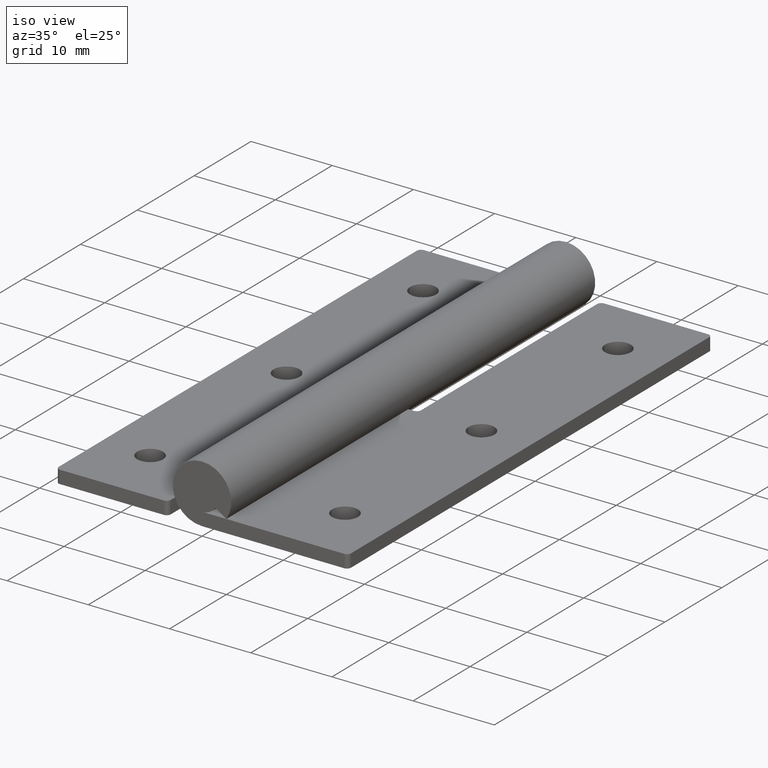
[diagram: clean part render]
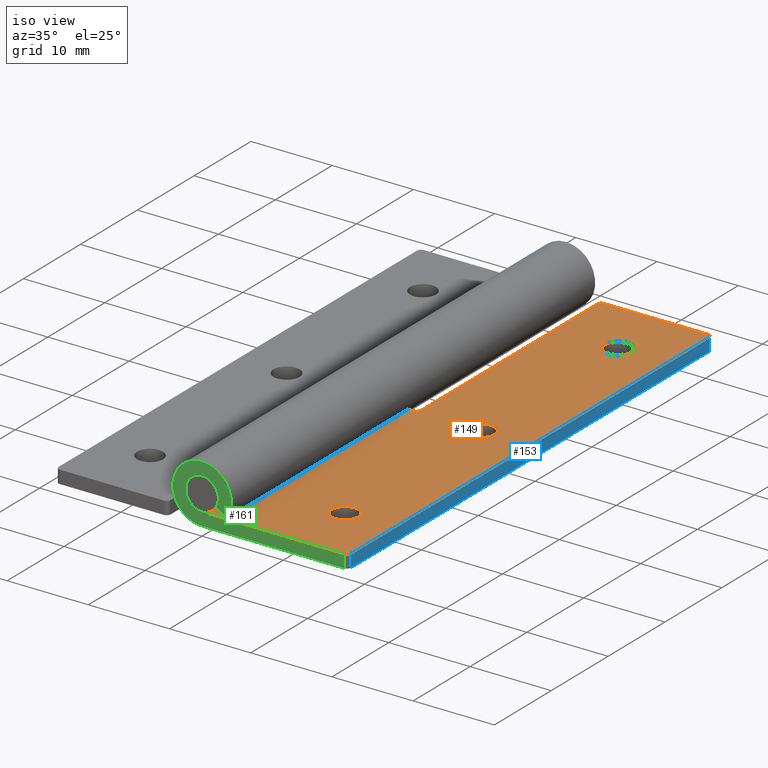
[diagram: same view with three faces highlighted in distinct colors, each labeled with its STEP entity id]
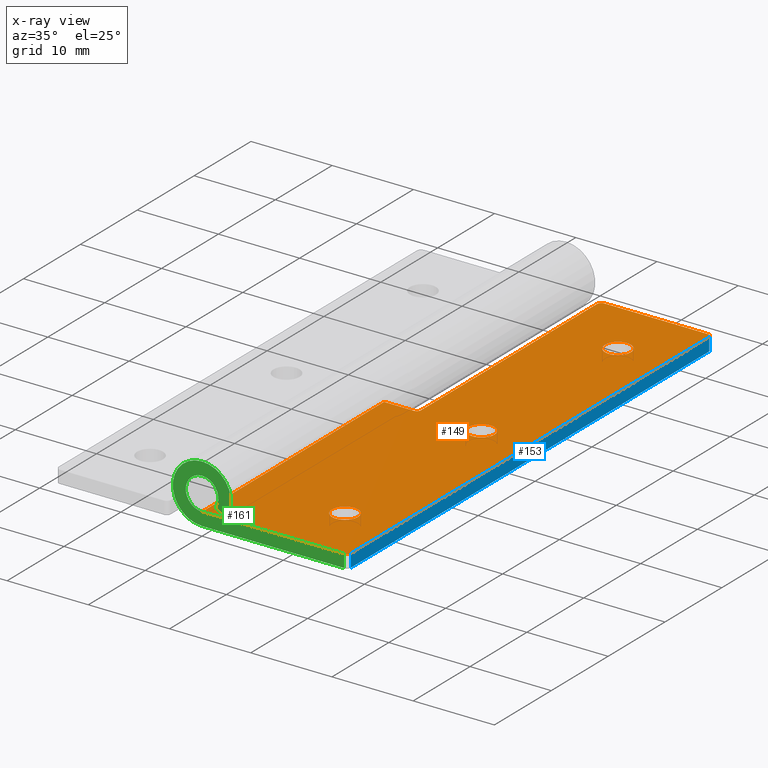
[diagram: x-ray of the same camera — body ghosted, the three highlighted faces saturated]
A machine part, iso view with three faces highlighted in distinct colors.
The next image is the same camera in x-ray (body ghosted, the three faces saturated) — at least one of them is partly hidden behind the body in this view.
Their STEP definitions:

[orange] entity #149 — the highlighted planar face has unit normal (0, 0, 1).
#149=ADVANCED_FACE('',(#196,#197,#198,#199),#195,.T.);
#195=PLANE('',#670);
#196=FACE_OUTER_BOUND('',#671,.T.);
#197=FACE_BOUND('',#672,.T.);
#198=FACE_BOUND('',#673,.T.);
#199=FACE_BOUND('',#674,.T.);
#667=CARTESIAN_POINT('',(-1.80000000000E+00,-6.40000000000E+00,-2.00000000000E+00));
#668=DIRECTION('',(0.00000000000E+00,-0.00000000000E+00,1.00000000000E+00));
#669=DIRECTION('',(1.00000000000E+00,0.00000000000E+00,-0.00000000000E+00));
#670=AXIS2_PLACEMENT_3D('',#667,#668,#669);
#671=EDGE_LOOP('',(#921,#922,#923,#924,#925,#926,#927,#928,#929,#930));
#672=EDGE_LOOP('',(#931,#932));
#673=EDGE_LOOP('',(#933,#934));
#674=EDGE_LOOP('',(#935,#936));
#921=ORIENTED_EDGE('',*,*,#1157,.F.);
#922=ORIENTED_EDGE('',*,*,#1158,.T.);
#923=ORIENTED_EDGE('',*,*,#1159,.F.);
#924=ORIENTED_EDGE('',*,*,#1160,.T.);
#925=ORIENTED_EDGE('',*,*,#1161,.T.);
#926=ORIENTED_EDGE('',*,*,#1162,.T.);
#927=ORIENTED_EDGE('',*,*,#1163,.F.);
#928=ORIENTED_EDGE('',*,*,#1164,.F.);
#929=ORIENTED_EDGE('',*,*,#1165,.F.);
#930=ORIENTED_EDGE('',*,*,#1166,.T.);
#931=ORIENTED_EDGE('',*,*,#1167,.F.);
#932=ORIENTED_EDGE('',*,*,#1168,.F.);
#933=ORIENTED_EDGE('',*,*,#1169,.F.);
#934=ORIENTED_EDGE('',*,*,#1170,.F.);
#935=ORIENTED_EDGE('',*,*,#1171,.F.);
#936=ORIENTED_EDGE('',*,*,#1172,.F.);
#1157=EDGE_CURVE('',#1275,#1276,#1277,.T.);
#1158=EDGE_CURVE('',#1275,#1283,#1284,.T.);
#1159=EDGE_CURVE('',#1290,#1283,#1291,.T.);
#1160=EDGE_CURVE('',#1290,#1297,#1298,.T.);
#1161=EDGE_CURVE('',#1297,#1304,#1305,.T.);
#1162=EDGE_CURVE('',#1304,#1311,#1312,.T.);
#1163=EDGE_CURVE('',#1318,#1311,#1319,.T.);
#1164=EDGE_CURVE('',#1325,#1318,#1326,.T.);
#1165=EDGE_CURVE('',#1332,#1325,#1333,.T.);
#1166=EDGE_CURVE('',#1332,#1276,#1339,.T.);
#1167=EDGE_CURVE('',#1345,#1346,#1347,.T.);
#1168=EDGE_CURVE('',#1346,#1345,#1353,.T.);
#1169=EDGE_CURVE('',#1359,#1360,#1361,.T.);
#1170=EDGE_CURVE('',#1360,#1359,#1367,.T.);
#1171=EDGE_CURVE('',#1373,#1374,#1375,.T.);
#1172=EDGE_CURVE('',#1374,#1373,#1381,.T.);
#1275=VERTEX_POINT('',#2061);
#1276=VERTEX_POINT('',#2062);
#1277=LINE('',#2063,#2064);
#1283=VERTEX_POINT('',#2066);
#1284=CIRCLE('',#2070,5.00000000000E-01);
#1290=VERTEX_POINT('',#2071);
#1291=LINE('',#2072,#2073);
#1297=VERTEX_POINT('',#2075);
#1298=CIRCLE('',#2079,5.00000000000E-01);
#1304=VERTEX_POINT('',#2080);
#1305=LINE('',#2081,#2082);
#1311=VERTEX_POINT('',#2084);
#1312=CIRCLE('',#2088,5.00000000000E-01);
#1318=VERTEX_POINT('',#2089);
#1319=LINE('',#2090,#2091);
#1325=VERTEX_POINT('',#2093);
#1326=CIRCLE('',#2097,5.00000000000E-01);
#1332=VERTEX_POINT('',#2098);
#1333=LINE('',#2099,#2100);
#1339=LINE('',#2102,#2103);
#1345=VERTEX_POINT('',#2105);
#1346=VERTEX_POINT('',#2106);
#1347=CIRCLE('',#2110,1.60000000000E+00);
#1353=CIRCLE('',#2114,1.60000000000E+00);
#1359=VERTEX_POINT('',#2115);
#1360=VERTEX_POINT('',#2116);
#1361=CIRCLE('',#2120,1.60000000000E+00);
#1367=CIRCLE('',#2124,1.60000000000E+00);
#1373=VERTEX_POINT('',#2125);
#1374=VERTEX_POINT('',#2126);
#1375=CIRCLE('',#2130,1.60000000000E+00);
#1381=CIRCLE('',#2134,1.60000000000E+00);
#2061=CARTESIAN_POINT('',(1.75000000000E+01,0.00000000000E+00,-2.00000000000E+00));
#2062=CARTESIAN_POINT('',(0.00000000000E+00,0.00000000000E+00,-2.00000000000E+00));
#2063=CARTESIAN_POINT('',(1.75000000000E+01,0.00000000000E+00,-2.00000000000E+00));
#2064=VECTOR('',#2065,1.75000000000E+01);
#2065=DIRECTION('',(-1.00000000000E+00,0.00000000000E+00,0.00000000000E+00));
#2066=CARTESIAN_POINT('',(1.80000000000E+01,5.00000000000E-01,-2.00000000000E+00));
#2067=CARTESIAN_POINT('',(1.75000000000E+01,5.00000000000E-01,-2.00000000000E+00));
#2068=DIRECTION('',(0.00000000000E+00,0.00000000000E+00,1.00000000000E+00));
#2069=DIRECTION('',(-1.00000000000E+00,-0.00000000000E+00,0.00000000000E+00));
#2070=AXIS2_PLACEMENT_3D('',#2067,#2068,#2069);
#2071=CARTESIAN_POINT('',(1.80000000000E+01,6.35000000000E+01,-2.00000000000E+00));
#2072=CARTESIAN_POINT('',(1.80000000000E+01,6.35000000000E+01,-2.00000000000E+00));
#2073=VECTOR('',#2074,6.30000000000E+01);
#2074=DIRECTION('',(0.00000000000E+00,-1.00000000000E+00,0.00000000000E+00));
#2075=CARTESIAN_POINT('',(1.75000000000E+01,6.40000000000E+01,-2.00000000000E+00));
#2076=CARTESIAN_POINT('',(1.75000000000E+01,6.35000000000E+01,-2.00000000000E+00));
#2077=DIRECTION('',(0.00000000000E+00,0.00000000000E+00,1.00000000000E+00));
#2078=DIRECTION('',(-1.00000000000E+00,-0.00000000000E+00,0.00000000000E+00));
#2079=AXIS2_PLACEMENT_3D('',#2076,#2077,#2078);
#2080=CARTESIAN_POINT('',(4.70000000004E+00,6.40000000000E+01,-2.00000000000E+00));
#2081=CARTESIAN_POINT('',(1.75000000000E+01,6.40000000000E+01,-2.00000000000E+00));
#2082=VECTOR('',#2083,1.28000000000E+01);
#2083=DIRECTION('',(-1.00000000000E+00,0.00000000000E+00,0.00000000000E+00));
#2084=CARTESIAN_POINT('',(4.20000000004E+00,6.35000000000E+01,-2.00000000000E+00));
#2085=CARTESIAN_POINT('',(4.70000000004E+00,6.35000000000E+01,-2.00000000000E+00));
#2086=DIRECTION('',(0.00000000000E+00,0.00000000000E+00,1.00000000000E+00));
#2087=DIRECTION('',(-1.00000000000E+00,-0.00000000000E+00,0.00000000000E+00));
#2088=AXIS2_PLACEMENT_3D('',#2085,#2086,#2087);
#2089=CARTESIAN_POINT('',(4.20000000004E+00,3.25000000000E+01,-2.00000000000E+00));
#2090=CARTESIAN_POINT('',(4.20000000004E+00,3.25000000000E+01,-2.00000000000E+00));
#2091=VECTOR('',#2092,3.10000000000E+01);
#2092=DIRECTION('',(0.00000000000E+00,1.00000000000E+00,0.00000000000E+00));
#2093=CARTESIAN_POINT('',(3.70000000004E+00,3.20000000000E+01,-2.00000000000E+00));
#2094=CARTESIAN_POINT('',(3.70000000004E+00,3.25000000000E+01,-2.00000000000E+00));
#2095=DIRECTION('',(0.00000000000E+00,0.00000000000E+00,1.00000000000E+00));
#2096=DIRECTION('',(-1.00000000000E+00,-0.00000000000E+00,0.00000000000E+00));
#2097=AXIS2_PLACEMENT_3D('',#2094,#2095,#2096);
#2098=CARTESIAN_POINT('',(0.00000000000E+00,3.20000000000E+01,-2.00000000000E+00));
#2099=CARTESIAN_POINT('',(0.00000000000E+00,3.20000000000E+01,-2.00000000000E+00));
#2100=VECTOR('',#2101,3.70000000004E+00);
#2101=DIRECTION('',(1.00000000000E+00,0.00000000000E+00,0.00000000000E+00));
#2102=CARTESIAN_POINT('',(0.00000000000E+00,3.20000000000E+01,-2.00000000000E+00));
#2103=VECTOR('',#2104,3.20000000000E+01);
#2104=DIRECTION('',(0.00000000000E+00,-1.00000000000E+00,0.00000000000E+00));
#2105=CARTESIAN_POINT('',(1.04000000000E+01,3.20000000000E+01,-2.00000000000E+00));
#2106=CARTESIAN_POINT('',(1.36000000000E+01,3.20000000000E+01,-2.00000000000E+00));
#2107=CARTESIAN_POINT('',(1.20000000000E+01,3.20000000000E+01,-2.00000000000E+00));
#2108=DIRECTION('',(0.00000000000E+00,-0.00000000000E+00,1.00000000000E+00));
#2109=DIRECTION('',(1.00000000000E+00,-1.22460635382E-16,-0.00000000000E+00));
#2110=AXIS2_PLACEMENT_3D('',#2107,#2108,#2109);
#2111=CARTESIAN_POINT('',(1.20000000000E+01,3.20000000000E+01,-2.00000000000E+00));
#2112=DIRECTION('',(0.00000000000E+00,-0.00000000000E+00,1.00000000000E+00));
#2113=DIRECTION('',(1.00000000000E+00,-1.22460635382E-16,-0.00000000000E+00));
#2114=AXIS2_PLACEMENT_3D('',#2111,#2112,#2113);
#2115=CARTESIAN_POINT('',(1.04000000000E+01,8.00000000000E+00,-2.00000000000E+00));
#2116=CARTESIAN_POINT('',(1.36000000000E+01,8.00000000000E+00,-2.00000000000E+00));
#2117=CARTESIAN_POINT('',(1.20000000000E+01,8.00000000000E+00,-2.00000000000E+00));
#2118=DIRECTION('',(0.00000000000E+00,-0.00000000000E+00,1.00000000000E+00));
#2119=DIRECTION('',(1.00000000000E+00,-1.22460635382E-16,-0.00000000000E+00));
#2120=AXIS2_PLACEMENT_3D('',#2117,#2118,#2119);
#2121=CARTESIAN_POINT('',(1.20000000000E+01,8.00000000000E+00,-2.00000000000E+00));
#2122=DIRECTION('',(0.00000000000E+00,-0.00000000000E+00,1.00000000000E+00));
#2123=DIRECTION('',(1.00000000000E+00,-1.22460635382E-16,-0.00000000000E+00));
#2124=AXIS2_PLACEMENT_3D('',#2121,#2122,#2123);
#2125=CARTESIAN_POINT('',(1.04000000000E+01,5.60000000000E+01,-2.00000000000E+00));
#2126=CARTESIAN_POINT('',(1.36000000000E+01,5.60000000000E+01,-2.00000000000E+00));
#2127=CARTESIAN_POINT('',(1.20000000000E+01,5.60000000000E+01,-2.00000000000E+00));
#2128=DIRECTION('',(0.00000000000E+00,-0.00000000000E+00,1.00000000000E+00));
#2129=DIRECTION('',(1.00000000000E+00,-1.22460635382E-16,-0.00000000000E+00));
#2130=AXIS2_PLACEMENT_3D('',#2127,#2128,#2129);
#2131=CARTESIAN_POINT('',(1.20000000000E+01,5.60000000000E+01,-2.00000000000E+00));
#2132=DIRECTION('',(0.00000000000E+00,-0.00000000000E+00,1.00000000000E+00));
#2133=DIRECTION('',(1.00000000000E+00,-1.22460635382E-16,-0.00000000000E+00));
#2134=AXIS2_PLACEMENT_3D('',#2131,#2132,#2133);

[blue] entity #153 — the highlighted planar face has unit normal (1, 0, 0).
#153=ADVANCED_FACE('',(#242),#241,.T.);
#241=PLANE('',#696);
#242=FACE_OUTER_BOUND('',#697,.T.);
#693=CARTESIAN_POINT('',(1.80000000000E+01,-5.80000000000E+00,-1.84000000000E+00));
#694=DIRECTION('',(1.00000000000E+00,0.00000000000E+00,0.00000000000E+00));
#695=DIRECTION('',(0.00000000000E+00,0.00000000000E+00,-1.00000000000E+00));
#696=AXIS2_PLACEMENT_3D('',#693,#694,#695);
#697=EDGE_LOOP('',(#961,#962,#963,#964));
#961=ORIENTED_EDGE('',*,*,#1193,.F.);
#962=ORIENTED_EDGE('',*,*,#1179,.F.);
#963=ORIENTED_EDGE('',*,*,#1173,.T.);
#964=ORIENTED_EDGE('',*,*,#1159,.T.);
#1159=EDGE_CURVE('',#1290,#1283,#1291,.T.);
#1173=EDGE_CURVE('',#1387,#1290,#1388,.T.);
#1179=EDGE_CURVE('',#1387,#1427,#1428,.T.);
#1193=EDGE_CURVE('',#1427,#1283,#1523,.T.);
#1283=VERTEX_POINT('',#2066);
#1290=VERTEX_POINT('',#2071);
#1291=LINE('',#2072,#2073);
#1387=VERTEX_POINT('',#2135);
#1388=LINE('',#2136,#2137);
#1427=VERTEX_POINT('',#2159);
#1428=LINE('',#2160,#2161);
#1523=LINE('',#2221,#2222);
#2066=CARTESIAN_POINT('',(1.80000000000E+01,5.00000000000E-01,-2.00000000000E+00));
#2071=CARTESIAN_POINT('',(1.80000000000E+01,6.35000000000E+01,-2.00000000000E+00));
#2072=CARTESIAN_POINT('',(1.80000000000E+01,6.35000000000E+01,-2.00000000000E+00));
#2073=VECTOR('',#2074,6.30000000000E+01);
#2074=DIRECTION('',(0.00000000000E+00,-1.00000000000E+00,0.00000000000E+00));
#2135=CARTESIAN_POINT('',(1.80000000000E+01,6.35000000000E+01,-3.60000000000E+00));
#2136=CARTESIAN_POINT('',(1.80000000000E+01,6.35000000000E+01,-3.60000000000E+00));
#2137=VECTOR('',#2138,1.60000000000E+00);
#2138=DIRECTION('',(0.00000000000E+00,0.00000000000E+00,1.00000000000E+00));
#2159=CARTESIAN_POINT('',(1.80000000000E+01,5.00000000000E-01,-3.60000000000E+00));
#2160=CARTESIAN_POINT('',(1.80000000000E+01,6.35000000000E+01,-3.60000000000E+00));
#2161=VECTOR('',#2162,6.30000000000E+01);
#2162=DIRECTION('',(0.00000000000E+00,-1.00000000000E+00,0.00000000000E+00));
#2221=CARTESIAN_POINT('',(1.80000000000E+01,5.00000000000E-01,-3.60000000000E+00));
#2222=VECTOR('',#2223,1.60000000000E+00);
#2223=DIRECTION('',(0.00000000000E+00,0.00000000000E+00,1.00000000000E+00));

[green] entity #161 — the highlighted planar face has unit normal (0, 1, 0).
#161=ADVANCED_FACE('',(#322),#321,.F.);
#321=PLANE('',#736);
#322=FACE_OUTER_BOUND('',#737,.T.);
#733=CARTESIAN_POINT('',(-6.57238381983E+00,0.00000000000E+00,-4.46005002209E+00));
#734=DIRECTION('',(-0.00000000000E+00,1.00000000000E+00,0.00000000000E+00));
#735=DIRECTION('',(0.00000000000E+00,0.00000000000E+00,1.00000000000E+00));
#736=AXIS2_PLACEMENT_3D('',#733,#734,#735);
#737=EDGE_LOOP('',(#993,#994,#995,#996,#997,#998));
#993=ORIENTED_EDGE('',*,*,#1204,.T.);
#994=ORIENTED_EDGE('',*,*,#1157,.T.);
#995=ORIENTED_EDGE('',*,*,#1197,.F.);
#996=ORIENTED_EDGE('',*,*,#1200,.T.);
#997=ORIENTED_EDGE('',*,*,#1202,.T.);
#998=ORIENTED_EDGE('',*,*,#1181,.T.);
#1157=EDGE_CURVE('',#1275,#1276,#1277,.T.);
#1181=EDGE_CURVE('',#1441,#1434,#1442,.T.);
#1197=EDGE_CURVE('',#1542,#1276,#1549,.T.);
#1200=EDGE_CURVE('',#1542,#1562,#1569,.T.);
#1202=EDGE_CURVE('',#1562,#1441,#1581,.T.);
#1204=EDGE_CURVE('',#1434,#1275,#1593,.T.);
#1275=VERTEX_POINT('',#2061);
#1276=VERTEX_POINT('',#2062);
#1277=LINE('',#2063,#2064);
#1434=VERTEX_POINT('',#2163);
#1441=VERTEX_POINT('',#2168);
#1442=LINE('',#2169,#2170);
#1542=VERTEX_POINT('',#2232);
#1549=CIRCLE('',#2239,2.00000000000E+00);
#1562=VERTEX_POINT('',#2244);
#1569=LINE('',#2248,#2249);
#1581=CIRCLE('',#2258,3.60000000000E+00);
#1593=LINE('',#2262,#2263);
#2061=CARTESIAN_POINT('',(1.75000000000E+01,0.00000000000E+00,-2.00000000000E+00));
#2062=CARTESIAN_POINT('',(0.00000000000E+00,0.00000000000E+00,-2.00000000000E+00));
#2063=CARTESIAN_POINT('',(1.75000000000E+01,0.00000000000E+00,-2.00000000000E+00));
#2064=VECTOR('',#2065,1.75000000000E+01);
#2065=DIRECTION('',(-1.00000000000E+00,0.00000000000E+00,0.00000000000E+00));
#2163=CARTESIAN_POINT('',(1.75000000000E+01,0.00000000000E+00,-3.60000000000E+00));
#2168=CARTESIAN_POINT('',(-6.61309271540E-16,0.00000000000E+00,-3.60000000000E+00));
#2169=CARTESIAN_POINT('',(-6.61309271540E-16,0.00000000000E+00,-3.60000000000E+00));
#2170=VECTOR('',#2171,1.75000000000E+01);
#2171=DIRECTION('',(1.00000000000E+00,0.00000000000E+00,0.00000000000E+00));
#2232=CARTESIAN_POINT('',(1.66489555948E+00,0.00000000000E+00,-1.10820700956E+00));
#2236=CARTESIAN_POINT('',(0.00000000000E+00,0.00000000000E+00,0.00000000000E+00));
#2237=DIRECTION('',(0.00000000000E+00,-1.00000000000E+00,0.00000000000E+00));
#2238=DIRECTION('',(-0.00000000000E+00,-0.00000000000E+00,-1.00000000000E+00));
#2239=AXIS2_PLACEMENT_3D('',#2236,#2237,#2238);
#2244=CARTESIAN_POINT('',(2.99681200706E+00,0.00000000000E+00,-1.99477261721E+00));
#2248=CARTESIAN_POINT('',(1.66489555948E+00,0.00000000000E+00,-1.10820700956E+00));
#2249=VECTOR('',#2250,1.60000000000E+00);
#2250=DIRECTION('',(8.32447779738E-01,0.00000000000E+00,-5.54103504780E-01));
#2255=CARTESIAN_POINT('',(0.00000000000E+00,0.00000000000E+00,0.00000000000E+00));
#2256=DIRECTION('',(0.00000000000E+00,-1.00000000000E+00,0.00000000000E+00));
#2257=DIRECTION('',(-0.00000000000E+00,-0.00000000000E+00,-1.00000000000E+00));
#2258=AXIS2_PLACEMENT_3D('',#2255,#2256,#2257);
#2262=CARTESIAN_POINT('',(1.75000000000E+01,0.00000000000E+00,-3.60000000000E+00));
#2263=VECTOR('',#2264,1.60000000000E+00);
#2264=DIRECTION('',(0.00000000000E+00,0.00000000000E+00,1.00000000000E+00));